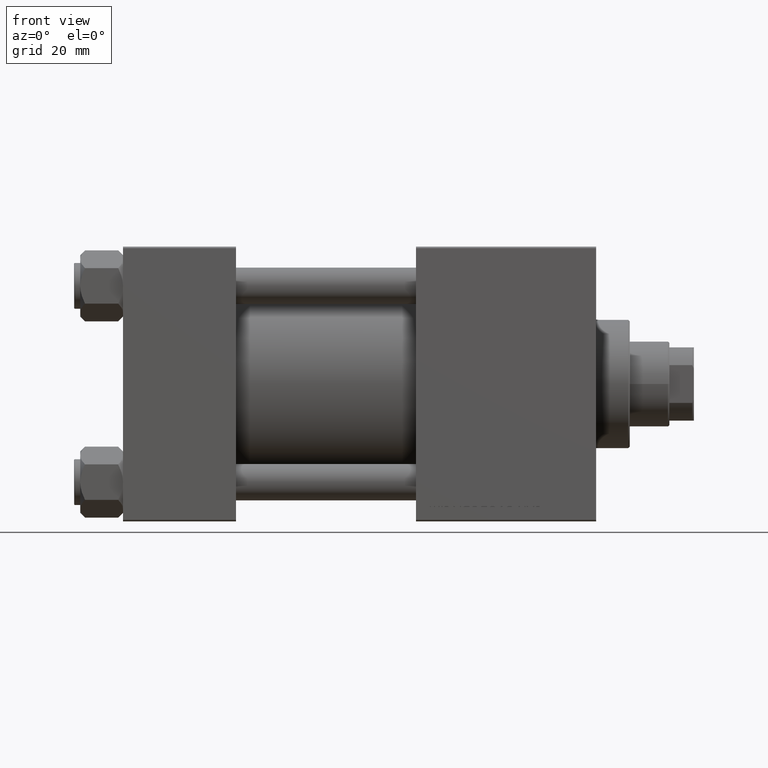
[diagram: clean part render]
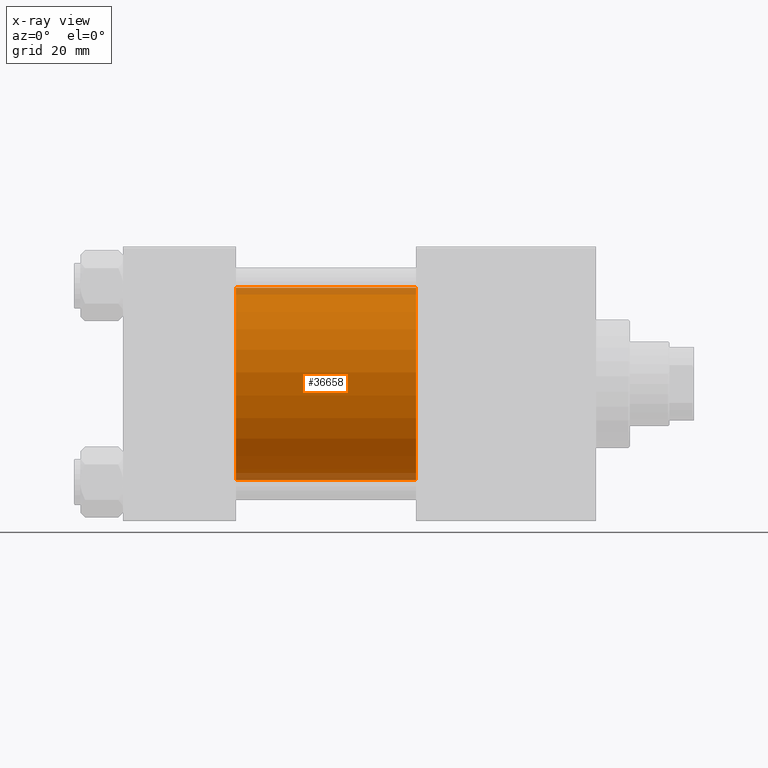
[diagram: x-ray — body ghosted, one internal face saturated and labeled with its STEP entity id]
A machine part, front view, then the same camera in x-ray: the body is ghosted and one INTERNAL B-rep face — a face not visible from any outside direction — is saturated and labeled: STEP entity #36658.
In plain terms, the highlighted cylindrical surface (partial cylindrical patch) has radius 31.5 mm, axis along (-1, -0, -0).
Its self-contained STEP definition (entity closure, byte-faithful):
#691 = VECTOR ( 'NONE', #14886, 1000.000000000000000 ) ;
#3715 = LINE ( 'NONE', #30138, #691 ) ;
#4580 = CYLINDRICAL_SURFACE ( 'NONE', #42603, 31.50000000000000000 ) ;
#5721 = LINE ( 'NONE', #33141, #43232 ) ;
#7481 = CARTESIAN_POINT ( 'NONE',  ( 37.00000000000000000, 1.255552203348951850E-15, -31.50000000000000000 ) ) ;
#8442 = CIRCLE ( 'NONE', #48964, 31.50000000000000000 ) ;
#8707 = EDGE_CURVE ( 'NONE', #48704, #45317, #5721, .T. ) ;
#10069 = EDGE_CURVE ( 'NONE', #48704, #39162, #8442, .T. ) ;
#12283 = DIRECTION ( 'NONE',  ( 0.000000000000000000, 0.000000000000000000, -1.000000000000000000 ) ) ;
#12533 = DIRECTION ( 'NONE',  ( 1.000000000000000000, 0.000000000000000000, 0.000000000000000000 ) ) ;
#14082 = DIRECTION ( 'NONE',  ( -1.000000000000000000, -0.000000000000000000, -0.000000000000000000 ) ) ;
#14886 = DIRECTION ( 'NONE',  ( -1.000000000000000000, -0.000000000000000000, -0.000000000000000000 ) ) ;
#15249 = DIRECTION ( 'NONE',  ( -1.000000000000000000, -0.000000000000000000, -0.000000000000000000 ) ) ;
#17083 = ORIENTED_EDGE ( 'NONE', *, *, #38028, .F. ) ;
#17215 = CARTESIAN_POINT ( 'NONE',  ( 96.00000000000000000, -2.602085213965210642E-15, 0.000000000000000000 ) ) ;
#17356 = CARTESIAN_POINT ( 'NONE',  ( 96.00000000000000000, -2.602085213965210642E-15, 31.50000000000000000 ) ) ;
#18537 = EDGE_LOOP ( 'NONE', ( #32657, #42521, #17083, #28383 ) ) ;
#20068 = CARTESIAN_POINT ( 'NONE',  ( 96.00000000000000000, -2.602085213965210642E-15, 0.000000000000000000 ) ) ;
#22034 = DIRECTION ( 'NONE',  ( 1.000000000000000000, 0.000000000000000000, 0.000000000000000000 ) ) ;
#22778 = CARTESIAN_POINT ( 'NONE',  ( 37.00000000000000000, -2.602085213965210642E-15, 31.50000000000000000 ) ) ;
#24728 = EDGE_CURVE ( 'NONE', #39162, #38970, #3715, .T. ) ;
#28383 = ORIENTED_EDGE ( 'NONE', *, *, #8707, .F. ) ;
#30138 = CARTESIAN_POINT ( 'NONE',  ( 96.00000000000000000, 1.255552203348951850E-15, -31.50000000000000000 ) ) ;
#31075 = CARTESIAN_POINT ( 'NONE',  ( 37.00000000000000000, -2.602085213965210642E-15, 0.000000000000000000 ) ) ;
#32657 = ORIENTED_EDGE ( 'NONE', *, *, #10069, .T. ) ;
#33141 = CARTESIAN_POINT ( 'NONE',  ( 96.00000000000000000, -2.602085213965210642E-15, 31.50000000000000000 ) ) ;
#36658 = ADVANCED_FACE ( 'NONE', ( #43163 ), #4580, .F. ) ;
#38028 = EDGE_CURVE ( 'NONE', #45317, #38970, #49941, .T. ) ;
#38591 = AXIS2_PLACEMENT_3D ( 'NONE', #31075, #12533, #12283 ) ;
#38970 = VERTEX_POINT ( 'NONE', #7481 ) ;
#39162 = VERTEX_POINT ( 'NONE', #40689 ) ;
#40689 = CARTESIAN_POINT ( 'NONE',  ( 96.00000000000000000, 1.255552203348951850E-15, -31.50000000000000000 ) ) ;
#42521 = ORIENTED_EDGE ( 'NONE', *, *, #24728, .T. ) ;
#42603 = AXIS2_PLACEMENT_3D ( 'NONE', #20068, #15249, #46235 ) ;
#43163 = FACE_OUTER_BOUND ( 'NONE', #18537, .T. ) ;
#43232 = VECTOR ( 'NONE', #14082, 1000.000000000000000 ) ;
#44633 = DIRECTION ( 'NONE',  ( 0.000000000000000000, 0.000000000000000000, -1.000000000000000000 ) ) ;
#45317 = VERTEX_POINT ( 'NONE', #22778 ) ;
#46235 = DIRECTION ( 'NONE',  ( 0.000000000000000000, 0.000000000000000000, 1.000000000000000000 ) ) ;
#48704 = VERTEX_POINT ( 'NONE', #17356 ) ;
#48964 = AXIS2_PLACEMENT_3D ( 'NONE', #17215, #22034, #44633 ) ;
#49941 = CIRCLE ( 'NONE', #38591, 31.50000000000000000 ) ;